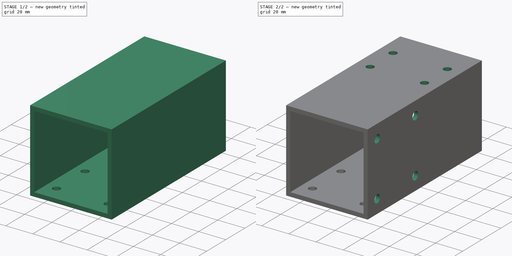
[diagram: build sequence overview — one tinted view per stage of 2, left to right]
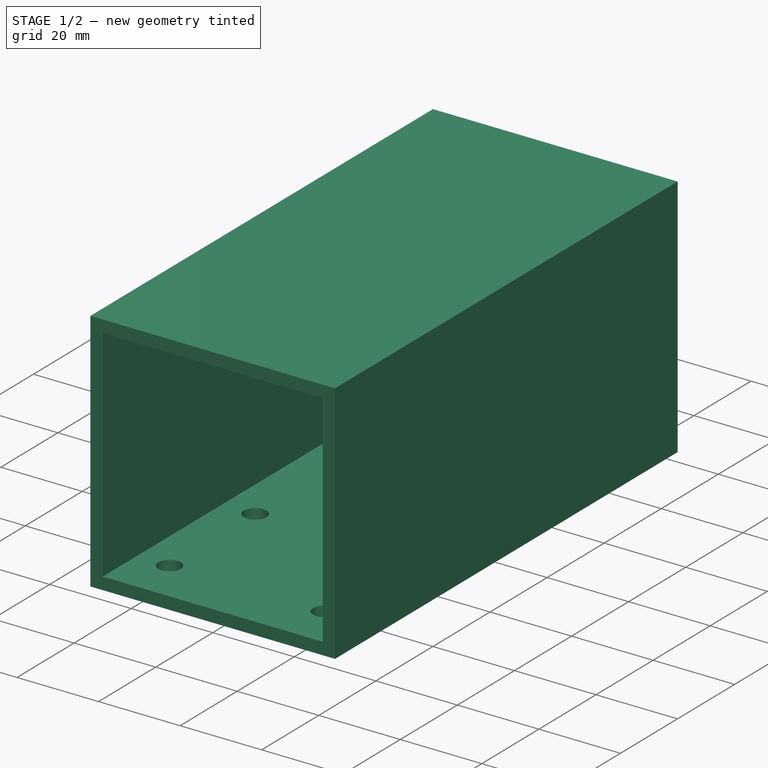
[diagram: stage 1 of 2 — iso view after this stage's code; geometry added in this stage tinted green]
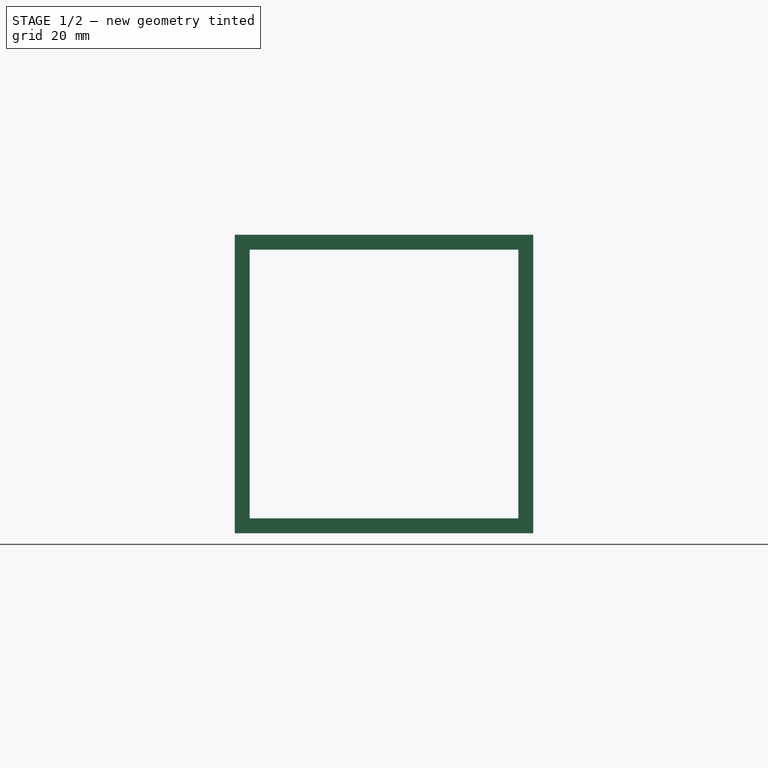
[diagram: stage 1 of 2 — front view after this stage's code; geometry added in this stage tinted green]
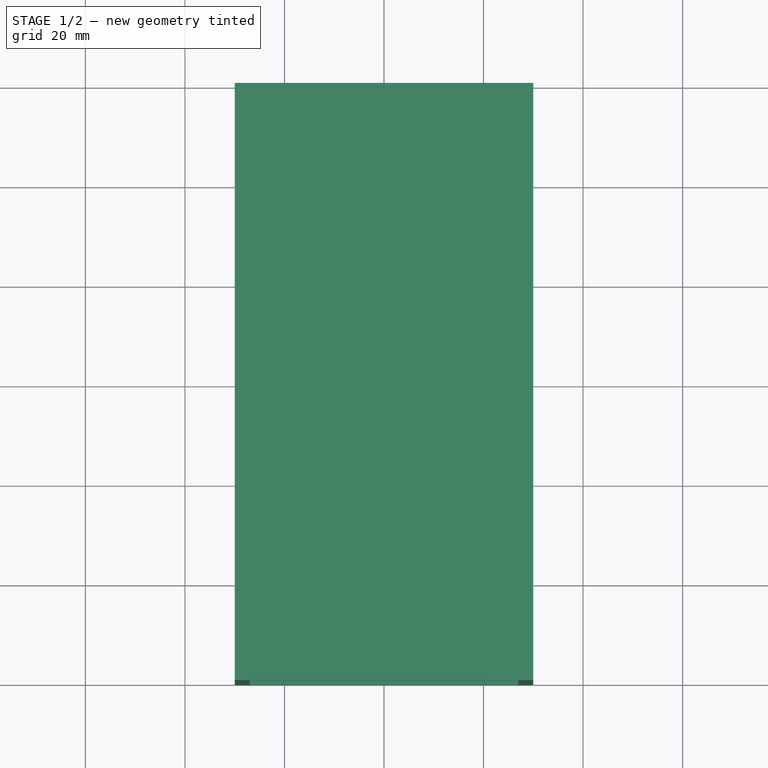
[diagram: stage 1 of 2 — top view after this stage's code; geometry added in this stage tinted green]
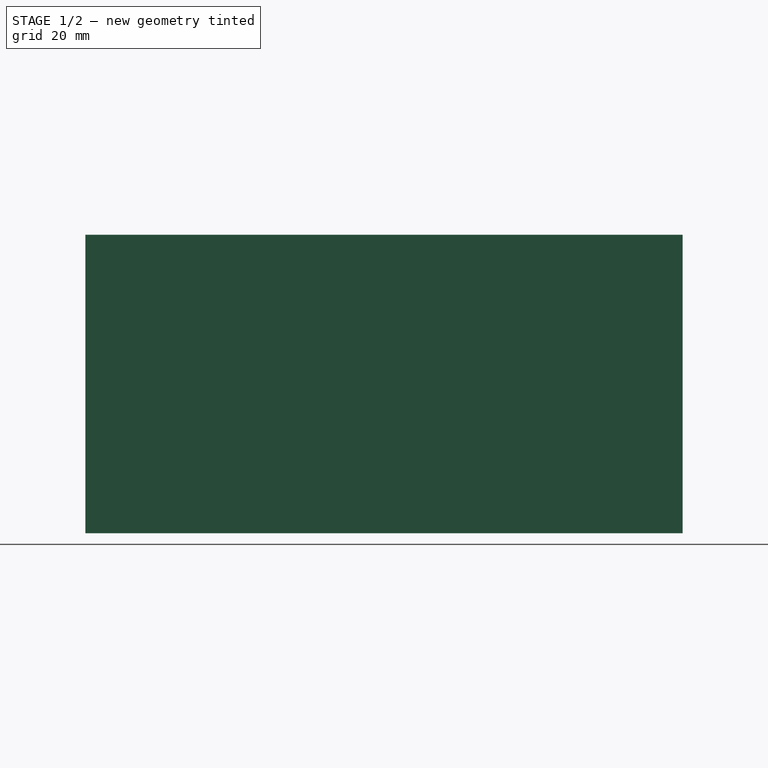
[diagram: stage 1 of 2 — right view after this stage's code; geometry added in this stage tinted green]
FCSTD DOCUMENT  (FreeCAD 0.19R)
Label: portal_support_tube_left
License: All rights reserved
LicenseURL: http://en.wikipedia.org/wiki/All_rights_reserved
objects: PartDesign::CoordinateSystem×18, Sketcher::SketchObject×4, PartDesign::Pocket×3, PartDesign::Pad×1, PartDesign::Body×1
note: 31 computed .brp shape members not serialized (recipe doc carries the construction recipe); baked Part::Feature solids carry a one-line shape summary decoded from their .brp

FEATURE [Sketcher::SketchObject] Sketch
  FullyConstrained = true
  MapMode = 5
  Placement = pos=(0,0,0) rot=(1,0,0;1.5708rad)
  Support = -> [XZ_Plane]
  sketch-geometry (8):
    g0: LineSegment StartX=-30 StartY=30 StartZ=0 EndX=30 EndY=30 EndZ=0
    g1: LineSegment StartX=30 StartY=30 StartZ=0 EndX=30 EndY=-30 EndZ=0
    g2: LineSegment StartX=30 StartY=-30 StartZ=0 EndX=-30 EndY=-30 EndZ=0
    g3: LineSegment StartX=-30 StartY=-30 StartZ=0 EndX=-30 EndY=30 EndZ=0
    g4: LineSegment StartX=-27 StartY=27 StartZ=0 EndX=27 EndY=27 EndZ=0
    g5: LineSegment StartX=27 StartY=27 StartZ=0 EndX=27 EndY=-27 EndZ=0
    g6: LineSegment StartX=27 StartY=-27 StartZ=0 EndX=-27 EndY=-27 EndZ=0
    g7: LineSegment StartX=-27 StartY=-27 StartZ=0 EndX=-27 EndY=27 EndZ=0
  constraints (22):
    c: Coincident(g0,g1)
    c: Coincident(g1,g2)
    c: Coincident(g2,g3)
    c: Coincident(g3,g0)
    c: Horizontal(g0)
    c: Vertical(g3)
    c: Symmetric(g2,g1,g-2)
    c: Symmetric(g1,g0,g-1)
    c: DistanceX(g2,g2) = 60
    c: DistanceY(g1,g1) = 60
    c: Coincident(g4,g5)
    c: Coincident(g5,g6)
    c: Coincident(g6,g7)
    c: Coincident(g7,g4)
    c: Horizontal(g4)
    c: Horizontal(g6)
    c: Vertical(g5)
    c: Vertical(g7)
    c: DistanceY(g4,g0) = 3
    c: DistanceX(g4,g0) = 3
    c: DistanceY(g2,g6) = 3
    c: DistanceX(g2,g6) = 3
FEATURE [PartDesign::Pad] Pad
  Direction = (1,1,1)
  Length = 120
  Length2 = 100
  Placement = pos=(0,0,0) rot=(1,0,0;1.5708rad)
  Profile = -> Sketch
  Type = 0
FEATURE [Sketcher::SketchObject] Sketch001
  ExternalGeometry = -> [Pad]
  FullyConstrained = true
  MapMode = 5
  Placement = pos=(0,0,-30) rot=(1,0,0;3.14159rad)
  Support = -> [Pad]
  sketch-geometry (8):
    g0: Circle CenterX=-19 CenterY=108 CenterZ=0 NormalX=0 NormalY=0 NormalZ=1 AngleXU=0 Radius=2.75
    g1: Circle CenterX=-19 CenterY=78 CenterZ=0 NormalX=0 NormalY=0 NormalZ=1 AngleXU=0 Radius=2.75
    g2: Circle CenterX=19 CenterY=108 CenterZ=0 NormalX=0 NormalY=0 NormalZ=1 AngleXU=0 Radius=2.75
    g3: Circle CenterX=19 CenterY=78 CenterZ=0 NormalX=0 NormalY=0 NormalZ=1 AngleXU=0 Radius=2.75
    g4: Circle CenterX=-19 CenterY=42 CenterZ=0 NormalX=0 NormalY=0 NormalZ=1 AngleXU=0 Radius=2.75
    g5: Circle CenterX=-19 CenterY=12 CenterZ=0 NormalX=0 NormalY=0 NormalZ=1 AngleXU=0 Radius=2.75
    g6: Circle CenterX=19 CenterY=42 CenterZ=0 NormalX=0 NormalY=0 NormalZ=1 AngleXU=0 Radius=2.75
    g7: Circle CenterX=19 CenterY=12 CenterZ=0 NormalX=0 NormalY=0 NormalZ=1 AngleXU=0 Radius=2.75
  constraints (20):
    c: Equal(g0,g2)
    c: Equal(g2,g1)
    c: Equal(g1,g3)
    c: Equal(g3,g4)
    c: Equal(g4,g6)
    c: Equal(g6,g7)
    c: Equal(g7,g5)
    c: Symmetric(g0,g2,g-2)
    c: Symmetric(g1,g3,g-2)
    c: Symmetric(g4,g6,g-2)
    c: Symmetric(g5,g7,g-2)
    c: DistanceY(g3,g2) = 30
    c: DistanceX(g0,g2) = 38
    c: DistanceX(g1,g3) = 38
    c: DistanceX(g4,g6) = 38
    c: DistanceX(g5,g7) = 38
    c: DistanceY(g7,g6) = 30
    c: Diameter(g2) = 5.5
    c: DistanceY(g-1,g7) = 12
    c: DistanceY(g2,g-3) = 12
FEATURE [PartDesign::Pocket] Pocket
  BaseFeature = -> Pad
  Length = 3
  Length2 = 100
  Placement = pos=(0,0,0) rot=(1,0,0;1.5708rad)
  Profile = -> Sketch001
  Type = 0
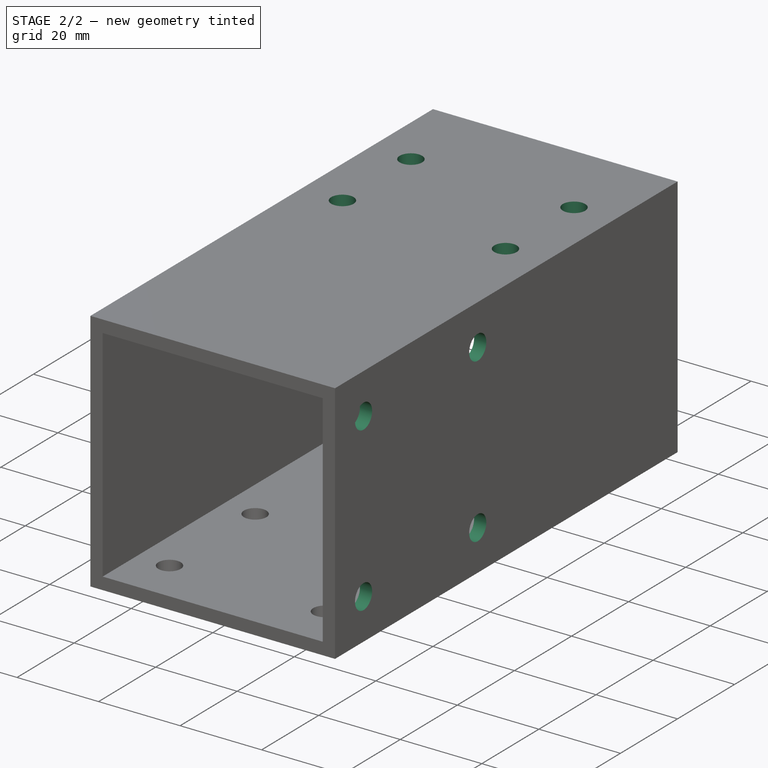
[diagram: stage 2 of 2 — iso view after this stage's code; geometry added in this stage tinted green]
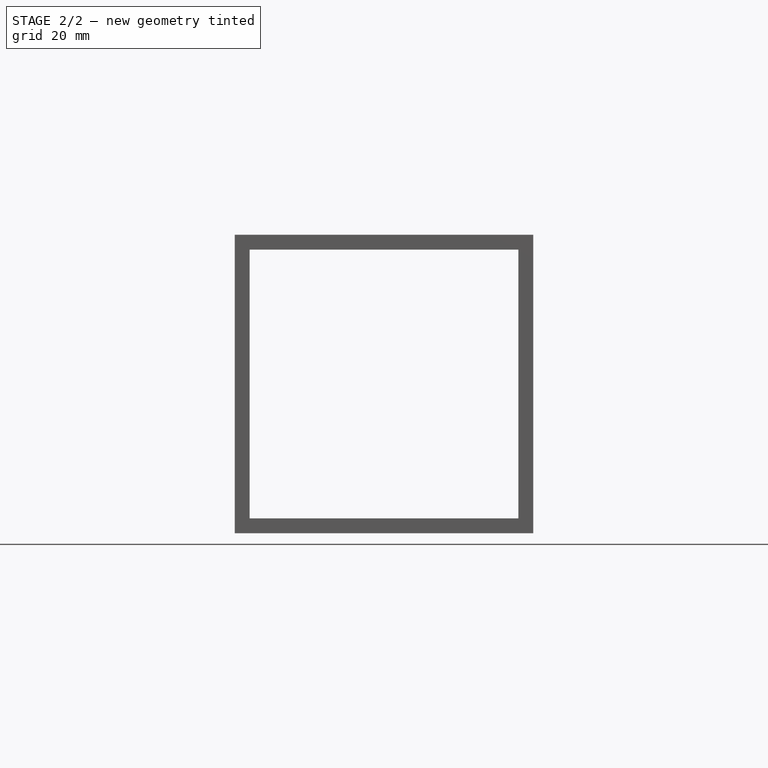
[diagram: stage 2 of 2 — front view after this stage's code; geometry added in this stage tinted green]
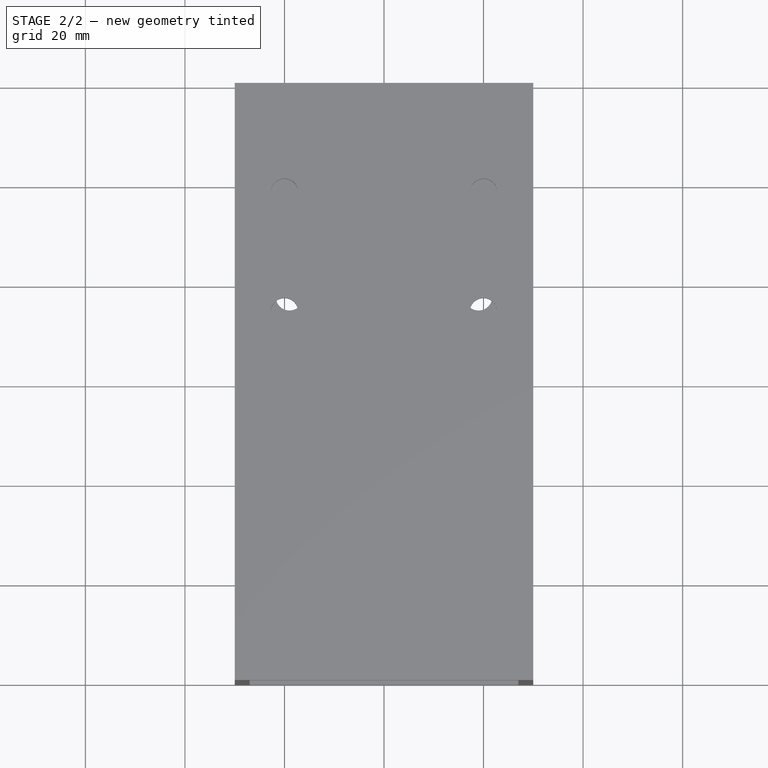
[diagram: stage 2 of 2 — top view after this stage's code; geometry added in this stage tinted green]
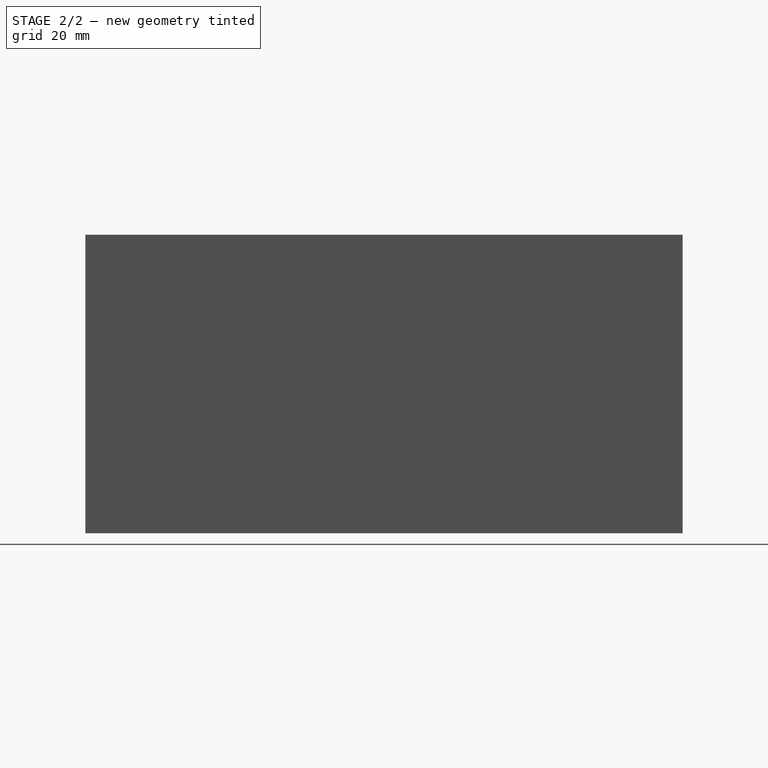
[diagram: stage 2 of 2 — right view after this stage's code; geometry added in this stage tinted green]
FEATURE [PartDesign::CoordinateSystem] LCS_h1
  AttacherType = Attacher::AttachEngine3D
  MapMode = 11
  Placement = pos=(-19,-108,-30) rot=(0.707107,-0.707107,0;3.14159rad)
  Support = -> [Pocket]
FEATURE [PartDesign::CoordinateSystem] LCS_h2
  AttacherType = Attacher::AttachEngine3D
  MapMode = 11
  Placement = pos=(19,-108,-30) rot=(0.707107,-0.707107,0;3.14159rad)
  Support = -> [Pocket]
FEATURE [PartDesign::CoordinateSystem] LCS_h3
  AttacherType = Attacher::AttachEngine3D
  MapMode = 11
  Placement = pos=(-19,-78,-30) rot=(0.707107,-0.707107,0;3.14159rad)
  Support = -> [Pocket]
FEATURE [PartDesign::CoordinateSystem] LCS_h4
  AttacherType = Attacher::AttachEngine3D
  MapMode = 11
  Placement = pos=(19,-78,-30) rot=(0.707107,-0.707107,0;3.14159rad)
  Support = -> [Pocket]
FEATURE [PartDesign::CoordinateSystem] LCS_h5
  AttacherType = Attacher::AttachEngine3D
  MapMode = 11
  Placement = pos=(-19,-42,-30) rot=(0.707107,-0.707107,0;3.14159rad)
  Support = -> [Pocket]
FEATURE [PartDesign::CoordinateSystem] LCS_h6
  AttacherType = Attacher::AttachEngine3D
  MapMode = 11
  Placement = pos=(19,-42,-30) rot=(0.707107,-0.707107,0;3.14159rad)
  Support = -> [Pocket]
FEATURE [PartDesign::CoordinateSystem] LCS_h7
  AttacherType = Attacher::AttachEngine3D
  MapMode = 11
  Placement = pos=(-19,-12,-30) rot=(0.707107,-0.707107,0;3.14159rad)
  Support = -> [Pocket]
FEATURE [PartDesign::CoordinateSystem] LCS_h8
  AttacherType = Attacher::AttachEngine3D
  MapMode = 11
  Placement = pos=(19,-12,-30) rot=(0.707107,-0.707107,0;3.14159rad)
  Support = -> [Pocket]
FEATURE [Sketcher::SketchObject] Sketch002
  FullyConstrained = true
  MapMode = 5
  Placement = pos=(0,0,30) rot=(0,0,1;3.14159rad)
  Support = -> [Pocket]
  sketch-geometry (4):
    g0: Circle CenterX=-20 CenterY=46 CenterZ=0 NormalX=0 NormalY=0 NormalZ=1 AngleXU=0 Radius=2.75
    g1: Circle CenterX=-20 CenterY=22 CenterZ=0 NormalX=0 NormalY=0 NormalZ=1 AngleXU=0 Radius=2.75
    g2: Circle CenterX=20 CenterY=46 CenterZ=0 NormalX=0 NormalY=0 NormalZ=1 AngleXU=0 Radius=2.75
    g3: Circle CenterX=20 CenterY=22 CenterZ=0 NormalX=0 NormalY=0 NormalZ=1 AngleXU=0 Radius=2.75
  constraints (10):
    c: DistanceY(g-1,g1) = 22
    c: Equal(g1,g3)
    c: Equal(g3,g2)
    c: Equal(g2,g0)
    c: Diameter(g3) = 5.5
    c: Symmetric(g3,g1,g-2)
    c: Symmetric(g2,g0,g-2)
    c: DistanceY(g3,g2) = 24
    c: DistanceX(g0,g2) = 40
    c: DistanceX(g1,g3) = 40
FEATURE [PartDesign::Pocket] Pocket001
  BaseFeature = -> Pocket
  Length = 3
  Length2 = 100
  Placement = pos=(0,0,0) rot=(1,0,0;1.5708rad)
  Profile = -> Sketch002
  Type = 0
FEATURE [PartDesign::CoordinateSystem] LCS_m1
  AttacherType = Attacher::AttachEngine3D
  MapMode = 11
  Placement = pos=(-20,-46,30) rot=(0,0,-1;1.5708rad)
  Support = -> [Pocket001]
FEATURE [PartDesign::CoordinateSystem] LCS_m2
  AttacherType = Attacher::AttachEngine3D
  MapMode = 11
  Placement = pos=(20,-46,30) rot=(0,0,-1;1.5708rad)
  Support = -> [Pocket001]
FEATURE [PartDesign::CoordinateSystem] LCS_m3
  AttacherType = Attacher::AttachEngine3D
  MapMode = 11
  Placement = pos=(-20,-22,30) rot=(0,0,-1;1.5708rad)
  Support = -> [Pocket001]
FEATURE [PartDesign::CoordinateSystem] LCS_m4
  AttacherType = Attacher::AttachEngine3D
  MapMode = 11
  Placement = pos=(20,-22,30) rot=(0,0,-1;1.5708rad)
  Support = -> [Pocket001]
FEATURE [Sketcher::SketchObject] Sketch003
  ExternalGeometry = -> [Pocket001]
  FullyConstrained = true
  MapMode = 5
  Placement = pos=(30,0,0) rot=(0.707107,0,0.707107;3.14159rad)
  Support = -> [Pocket001]
  sketch-geometry (4):
    g0: Circle CenterX=-20 CenterY=110 CenterZ=0 NormalX=0 NormalY=0 NormalZ=1 AngleXU=0 Radius=3
    g1: Circle CenterX=20 CenterY=110 CenterZ=0 NormalX=0 NormalY=0 NormalZ=1 AngleXU=0 Radius=3
    g2: Circle CenterX=-20 CenterY=70 CenterZ=0 NormalX=0 NormalY=0 NormalZ=1 AngleXU=0 Radius=3
    g3: Circle CenterX=20 CenterY=70 CenterZ=0 NormalX=0 NormalY=0 NormalZ=1 AngleXU=0 Radius=3
  constraints (10):
    c: Equal(g2,g3)
    c: Equal(g3,g1)
    c: Equal(g1,g0)
    c: Diameter(g1) = 6
    c: Symmetric(g2,g3,g-2)
    c: Symmetric(g1,g0,g-2)
    c: DistanceX(g0,g1) = 40
    c: DistanceX(g2,g3) = 40
    c: DistanceY(g2,g0) = 40
    c: DistanceY(g0,g-3) = 10
FEATURE [PartDesign::Pocket] Pocket002
  BaseFeature = -> Pocket001
  Length = 3
  Length2 = 100
  Placement = pos=(0,0,0) rot=(1,0,0;1.5708rad)
  Profile = -> Sketch003
  Type = 0
FEATURE [PartDesign::CoordinateSystem] LCS_ch1
  AttacherType = Attacher::AttachEngine3D
  MapMode = 11
  Placement = pos=(20,-22,27) rot=(0,0,-1;1.5708rad)
  Support = -> [Pocket002]
FEATURE [PartDesign::CoordinateSystem] LCS_ch2
  AttacherType = Attacher::AttachEngine3D
  MapMode = 11
  Placement = pos=(-20,-22,27) rot=(0,0,-1;1.5708rad)
  Support = -> [Pocket002]
FEATURE [PartDesign::CoordinateSystem] LCS_1
  AttacherType = Attacher::AttachEngine3D
  MapMode = 11
  Placement = pos=(30,-110,20) rot=(0.57735,-0.57735,0.57735;4.18879rad)
  Support = -> [Pocket002]
FEATURE [PartDesign::CoordinateSystem] LCS_2
  AttacherType = Attacher::AttachEngine3D
  MapMode = 11
  Placement = pos=(30,-70,20) rot=(0.57735,-0.57735,0.57735;4.18879rad)
  Support = -> [Pocket002]
FEATURE [PartDesign::CoordinateSystem] LCS_3
  AttacherType = Attacher::AttachEngine3D
  MapMode = 11
  Placement = pos=(30,-110,-20) rot=(0.57735,-0.57735,0.57735;4.18879rad)
  Support = -> [Pocket002]
FEATURE [PartDesign::CoordinateSystem] LCS_4
  AttacherType = Attacher::AttachEngine3D
  MapMode = 11
  Placement = pos=(30,-70,-20) rot=(0.57735,-0.57735,0.57735;4.18879rad)
  Support = -> [Pocket002]
FEATURE [PartDesign::Body] Body
  Group = -> [Sketch,Pad,Sketch001,Pocket,LCS_h1,LCS_h2,LCS_h3,LCS_h4,LCS_h5,LCS_h6,LCS_h7,LCS_h8,Sketch002,Pocket001,LCS_m1,LCS_m2,LCS_m3,LCS_m4,Sketch003,Pocket002,LCS_ch1,LCS_ch2,LCS_1,LCS_2,LCS_3,LCS_4]
  Origin = -> Origin
  Tip = -> Pocket002
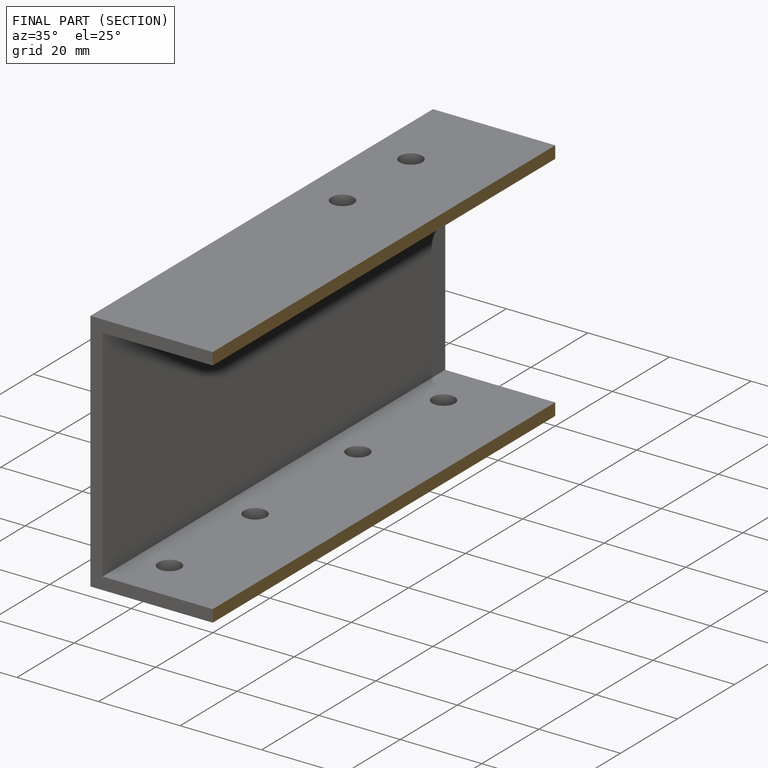
[diagram: finished part — half-section view (interior)]
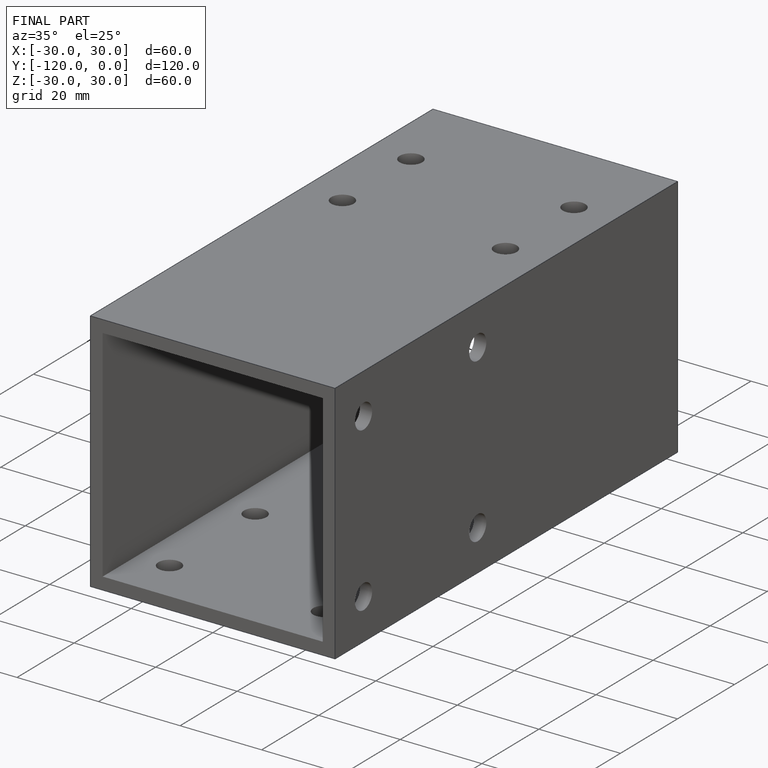
[diagram: finished part — iso view with bounding-box wireframe]
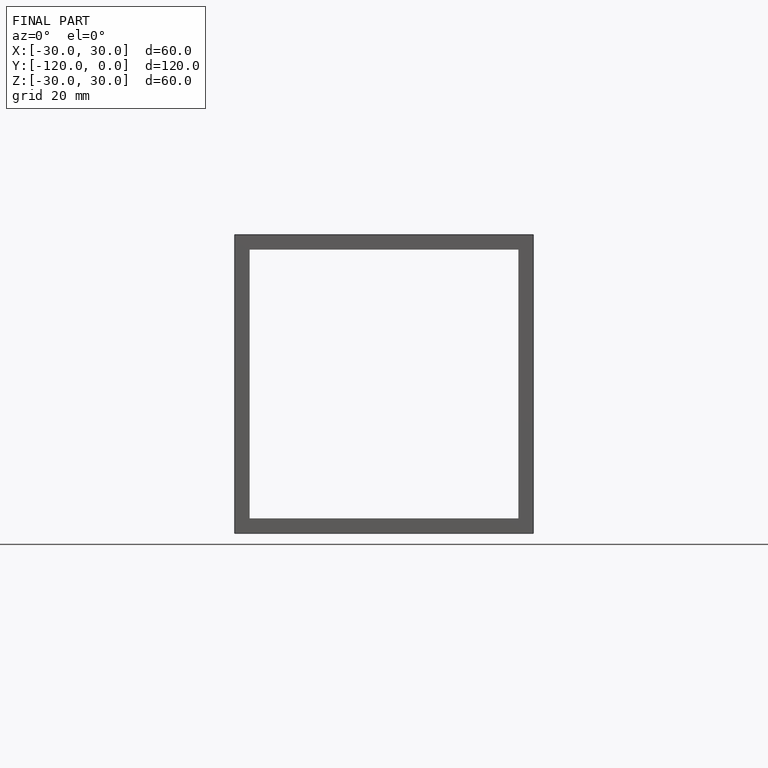
[diagram: finished part — front view with bounding-box wireframe]
